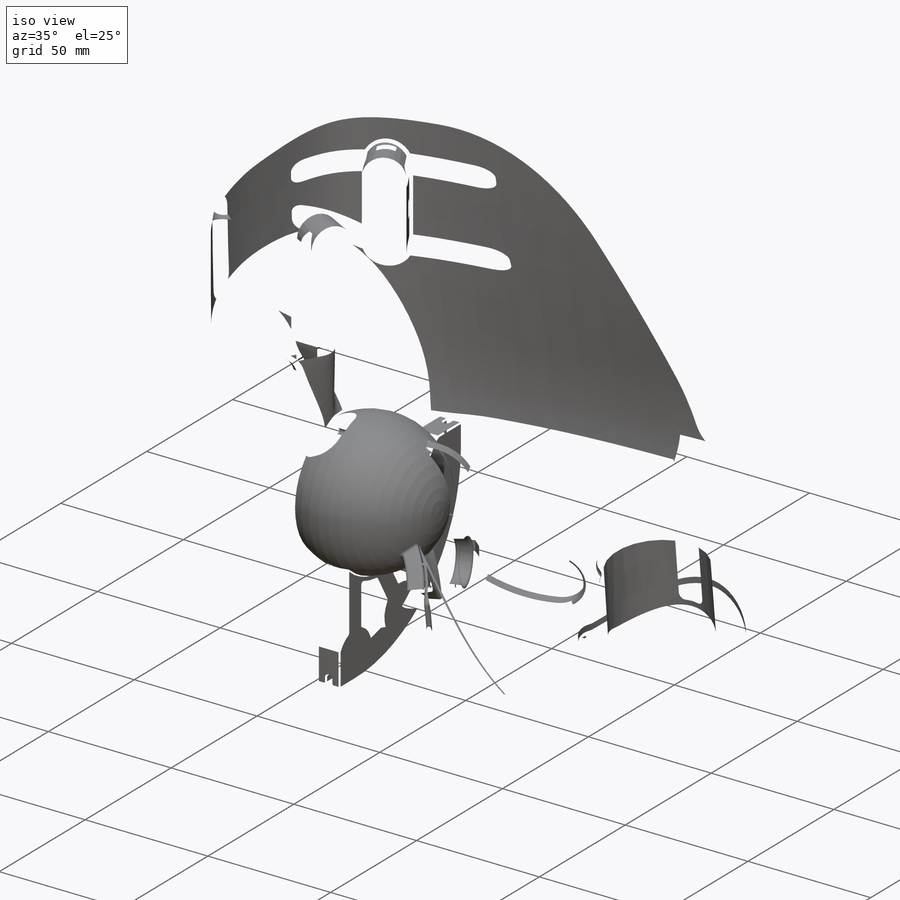
[diagram: iso view]
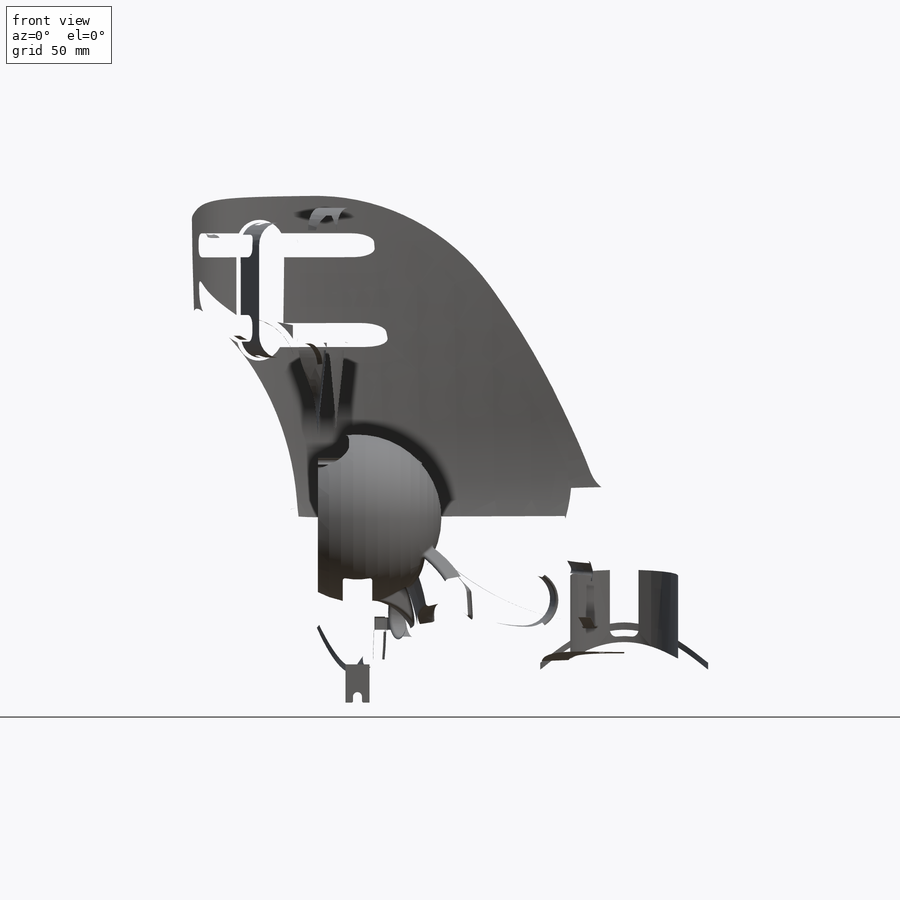
[diagram: front view]
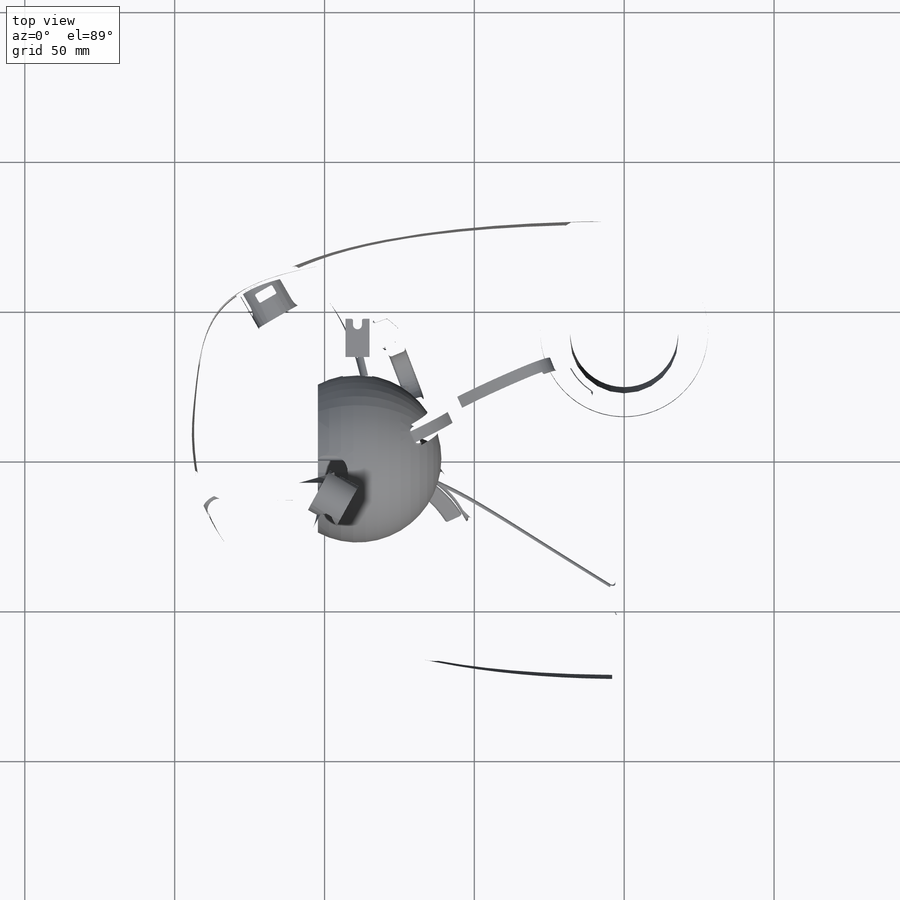
[diagram: top view]
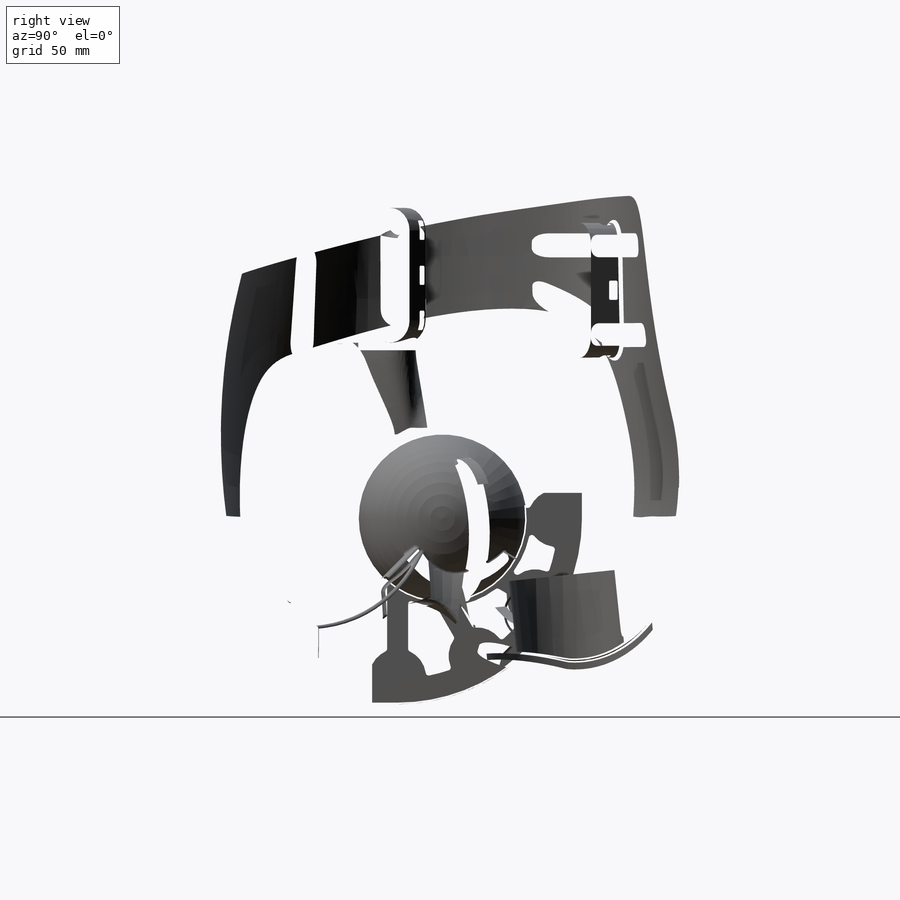
[diagram: right view]
SOLIDWORKS PART (.sldprt)
format: sldprt  version: not decoded by parser v0  size: 22,537,728 bytes
history: native  units: mm
features: sketch x119, plane x27, cut_extrude x14, extrude x14, hole x8, revolve x7, cut_revolve x6, pattern_circular x4, thread x3, surface_op x3, mirror x3, fillet x2, material x1 (+18 scaffold rows collapsed; 10 parser-record rows omitted)
feature tree (239):
  scaffold x18  (default folders/planes/origin — collapsed)
  material  "Material <nicht festgelegt>"
  plane  "Vorne"
  plane  "Oben"
  plane  "Rechts"
  sketch  "Skizze4"  dims[c1.D3=~163.785268mm c1.D2=~51.648182mm c2.D3=~211.701734mm c2.D4=~228.409906mm c2.D7=~87.232181mm c3.D3=375.0mm c3.D5=~146.556848mm c3.D6=5000.0mm c3.D7=300.0mm c3.D12=200.0mm c3.D13=35.0mm c3.D14=480.0mm c3.D16=~225.559991mm c3.D17=~137.502733mm c3.D18=160.0mm c3.D19=90.0mm c3.D1=~28.211065mm c3.D2=~66.263957mm c4.D1=80.0mm c4.D5=~65.463628mm c4.D6=~16.895229mm c4.D8=~53.710382mm c5.D1=85.0mm c5.D2=14.0mm c5.D4=80.0mm c5.D5=28.0mm c5.D7=~82.24904mm c5.D8=80.0mm c5.D9=55.0mm c5.D10=47.5mm c5.D11=50.0mm c5.D15=85.0mm c5.D16=120.0mm c5.D14=85.0mm c6.D15=110.0mm c6.D16=3.0deg c6.D17=15.0deg c6.D20=~285.822971mm c6.D21=~79.266788mm c6.D22=~73.257786mm]
  plane  "Ebene116"
  sketch  "Skizze5"  dims[c1.D1=~332.447459mm c1.D2=~299.702419mm c1.D5=~380.558368mm c1.D6=300.0mm c1.D7=300.0mm c2.D5=400.0mm c2.D6=400.0mm c2.D7=305.0mm c2.D8=280.0mm c3.D5=400.0mm c3.D8=250.0mm c3.D2=375.0mm c3.D3=~312.951834mm c3.D4=85.0mm c4.D2=280.0mm c4.D4=440.0mm c4.D5=475.0mm c4.D1=88.0deg c5.D2=88.0deg c5.D3=145.0mm c5.D4=145.0mm c5.D1=~598.728565mm c6.D1=95.0deg c6.D2=~598.728565mm c7.D2=95.0deg c7.D1=150.0mm c7.D3=85.0deg]
  sketch  "Skizze6"  dims[c1.D2=~243.594358mm c1.D3=245.0mm c1.D4=465.0mm c1.D5=360.0mm c1.D1=140.0mm c2.D2=85.0deg]
  sketch  "Skizze7"  dims[c1.D1=~180.714068mm c1.D2=~71.88216mm c1.D3=70.0mm c1.D4=180.0mm c2.D1=90.0deg c2.D2=75.0deg]
  sketch  "Skizze8"
  plane  "Ebene117"  Offset=80mm
  sketch  "3D-Skizze1"
  sketch  "Skizze9"  dims[D2=25.0mm D3=25.0mm D1=40.0mm]
  sketch  "Skizze10"
  plane  "Ebene118"  Offset=130mm
  sketch  "Skizze12"  dims[c1.D2=~28.489147mm c1.D3=20.0mm c1.D4=20.0mm c1.D5=100.0mm c1.D6=100.0mm c1.D1=30.0mm c2.D2=30.0mm]
  sketch  "Skizze13"
  plane  "Ebene123"
  sketch  "Skizze112"  dims[D1=45.0mm D2=65.0mm]
  sketch  "Skizze13<3>"
  sketch  "Skizze14"
  parser-record x10  (decoder bookkeeping rows leaked as tree rows — omitted from the tree; the rows remain in map.json)
  sketch  "Skizze17"  dims[c1.D1=~119.43538mm c2.D1=20.0deg c2.D2=120.0mm c2.D3=89.0mm]
  sketch  "Skizze18"
  plane  "Ebene119"
  sketch  "Skizze19"  dims[c1.D5=180.0mm c1.D6=250.0mm c2.D6=~314.148269mm c2.D7=315.0mm c2.D1=70.0mm c2.D2=65.0mm c2.D3=150.0mm c2.D4=55.0mm c3.D6=75.0deg]
  sketch  "Oberfläche-Trimmen4"
  sketch  "Skizze20"  dims[D1=350.0mm D2=200.0mm]
  sketch  "Oberfläche-Trimmen5"
  sketch  "Skizze23"  dims[D3=75.0mm D1=37.5mm D2=48.0mm]
  sketch  "Oberfläche-Trimmen6"
  sketch  "Skizze24"  dims[c1.D3=249.0mm c1.D4=100.0mm c1.D5=75.0mm c1.D2=10.0mm c1.D1=105.0mm c2.D2=15.0mm c2.D6=12.0mm c2.D7=9.6727mm c3.D7=75.0deg c3.D2=~165.379311mm c3.D6=9.5mm c4.D7=~8.135081mm c5.D7=20.0deg]
  sketch  "Oberfläche-Trimmen7"  dims[D1=6.0mm]
  sketch  "Skizze26"  dims[c1.D2=20.0mm c1.D1=~47.038277mm c2.D2=40.0mm c2.D4=28.0mm c2.D1=89.0mm c2.D3=8.0mm c2.D5=~16.072861mm c3.D5=45.0deg c3.D6=8.0mm c3.D7=~21.640974mm c4.D7=15.0deg]
  sketch  "Skizze28"  dims[c1.D1=17.0mm c1.D2=36.0mm c1.D3=~14.817554mm c2.D3=15.0deg c2.D2=15.0mm c2.D4=30.0mm]
  revolve  "Rotation2"  Angle=360deg
  hole  "M2.5 Gewindebohrung1"  Diameter=2.05mm Depth=12mm
  sketch  "Skizze62"  dims[D1=19.0mm]
  sketch  "Skizze61"  dims[hole-wizard template sketch: 46 standard entries collapsed; hole parameters kept: c15.Bohrerdurchmesser=2.05mm c15.Bohrungstiefe=12.0mm c15.D3=~14.816244mm c15.Spitzenwinkel=118.0deg]
  thread  "Bohrungsgewinde4"  Diameter=10mm  [1 undecoded]
  pattern_circular  "Kreismuster1"  Count=8 Angle=360deg
  sketch  "Skizze57"  dims[D1=3.0mm D2=3.0mm D3=90.0mm D4=90.0mm]
  sketch  "Oberfläche-Trimmen28"  dims[c1.D1=2.0mm c1.D2=3.0deg c2.D1=2.0mm c2.D2=3.0deg]
  fillet  "Verrundung24"  Radius=2mm
  sketch  "Skizze72"  dims[c1.D11=12.5mm c1.D1=~62.327521mm c2.D1=6.0deg c2.D2=37.146mm c2.D3=8.785mm c2.D4=3.0mm c2.D5=10.0mm c2.D6=40.0mm c2.D7=3.0mm c2.D8=~7.947211mm c3.D8=5.0deg c3.D9=40.0mm c3.D5=18.0mm c3.D6=~6.270644mm c4.D6=5.0deg c4.D10=40.0mm c4.D12=18.0mm c4.D13=25.0mm c4.D14=30.0mm c4.D15=~28.435337mm c5.D15=60.0deg c5.D16=~20.676444mm c6.D16=60.0deg]
  hole  "Rotation3"  [1 undecoded]
  sketch  "Skizze73"  dims[D1=45.0mm]
  hole  "Rotation4"  Diameter=2mm
  sketch  "Skizze75"  dims[c1.D3=15.5mm c1.D1=30.0mm c1.D2=30.0mm c2.D2=22.5deg]
  cut_extrude  "Schnitt-Linear austragen1"  Depth=8mm
  thread  "Achse2"  [2 undecoded]
  pattern_circular  "Kreismuster2"  Count=8 Angle=360deg
  sketch  "Skizze78"  dims[c1.D1=~9.826294mm c2.D1=22.5deg c2.D2=30.0mm c3.D1=2.0mm]
  sketch  "Skizze79"  dims[D3=25.0mm D4=40.0mm D1=80.0mm D2=30.0mm D5=~19.210196mm]
  surface_op  "Oberfläche-Linear austragen1"
  sketch  "Skizze80"  dims[c1.D1=~211.950862mm c1.D2=8.0mm c1.D3=75.0mm c1.D5=12.0mm c1.D7=35.0mm c2.D1=21.0mm c2.D4=15.0mm c2.D6=33.0mm]
  sketch  "Oberfläche-Trimmen31"
  sketch  "Skizze81"  dims[D2=40.0mm D1=25.0mm]
  sketch  "Skizze83"  dims[D1=60.0mm]
  sketch  "Skizze84"  dims[D1=28.0mm]
  sketch  "Skizze96"  dims[D3=20.0mm D4=15.0mm D9=9.0mm D10=9.0mm D11=40.0mm D1=40.0mm D2=20.0mm D5=22.0mm D6=50.0mm D7=33.0mm D8=27.0mm]
  sketch  "Oberfläche-Trimmen34"
  sketch  "Skizze85"  dims[D1=85.0mm D2=12.8mm]
  sketch  "Skizze83<2>"
  plane  "Ebene121"
  sketch  "Skizze86"  dims[c1.D3=~151.139817mm c1.D6=50.0mm c1.D1=85.0mm c1.D2=~16.638206mm c2.D2=8.0deg c2.D3=~86.267534mm c3.D3=20.0deg c3.D4=~46.214892mm c4.D4=15.0deg c4.D5=80.0mm]
  sketch  "Skizze87"  dims[D1=80.0mm D2=80.0mm]
  sketch  "Skizze88"  dims[c1.D1=55.0mm c2.D1=20.0mm]
  sketch  "Skizze90"  dims[c1.D2=36.0mm c1.D4=48.0mm c1.D1=~17.264031mm c2.D1=45.0deg c2.D3=~16.359863mm c3.D3=30.0deg]
  sketch  "Oberfläche-Trimmen32"
  sketch  "Skizze91"
  sketch  "Skizze93"
  sketch  "Skizze94"
  sketch  "Skizze83<3>"
  sketch  "Skizze95"  dims[c1.D2=60.0mm c1.D1=36.5mm c1.D3=~17.907024mm c2.D3=37.5deg]
  sketch  "Oberfläche-Trimmen33"
  sketch  "Skizze97"  dims[D2=17.5mm D1=27.5mm]
  sketch  "Oberfläche-Trimmen35"
  sketch  "Skizze98"  dims[c1.D2=42.0mm c1.D1=24.0mm c1.D3=~11.289997mm c2.D3=30.0deg]
  sketch  "Oberfläche-Trimmen36"  dims[c1.D1=3.0mm c2.D1=2.0mm c3.D1=2.0mm]
  sketch  "Skizze99"  dims[D1=180.0deg]
  sketch  "Oberfläche-Trimmen37"
  sketch  "Oberfläche-Trimmen43"
  sketch  "Oberfläche-Trimmen39"
  sketch  "Oberfläche-Trimmen40"
  sketch  "Oberfläche-Trimmen41"
  sketch  "Oberfläche-Trimmen42"
  sketch  "Skizze105"  dims[D1=38.0mm D2=64.0mm D3=47.0mm]
  plane  "Ebene122"
  sketch  "Skizze106"  dims[D1=10.0mm]
  surface_op  "Oberfläche-Rotation3"
  sketch  "Oberfläche-Trimmen44"  dims[D1=1.0mm]
  sketch  "Oberfläche-Trimmen46"
  sketch  "Skizze107"  dims[c1.D1=8.0mm c1.D3=50.0mm c1.D2=30.0mm c1.D4=8.0mm c2.D4=15.0deg c2.D5=77.5mm]
  sketch  "Oberfläche-Trimmen47"
  sketch  "Skizze108"  dims[D1=15.0mm D2=28.0mm D3=32.0mm]
  sketch  "Oberfläche-Trimmen48"
  revolve  "Wanddicke auftragen8"  [1 undecoded]
  revolve  "Wanddicke auftragen9"  [1 undecoded]
  revolve  "Wanddicke auftragen10"  [1 undecoded]
  revolve  "Wanddicke auftragen11"  [1 undecoded]
  revolve  "Wanddicke auftragen12"  [1 undecoded]
  revolve  "Wanddicke auftragen15"  [1 undecoded]
  sketch  "Skizze101"  dims[c1.D3=2.0mm c1.D1=26.5mm c1.D2=3.0mm c2.D3=6.0mm]
  hole  "Rotation5"  [1 undecoded]
  sketch  "Skizze103"  dims[D1=85.0mm D2=90.0mm]
  cut_extrude  "Schnitt-Linear austragen2"  [1 undecoded]
  sketch  "Skizze104"  dims[D1=3.0mm D2=20.0mm]
  cut_revolve  "Schnitt-Rotation1"  Angle=180deg
  sketch  "Skizze109"  dims[c1.D1=2.55mm c1.D2=~3.001681mm c2.D2=90.0deg c2.D3=26.0mm c2.D4=2.0mm c2.D5=25.0mm c2.D6=~3.910585mm c3.D6=90.0deg c3.D7=6.0mm]
  hole  "Rotation6"  [1 undecoded]
  cut_revolve  "Schnitt-Rotation2"  [1 undecoded]
  sketch  "Skizze109<4>"  dims[D1=180.0deg]
  sketch  "Skizze111"  dims[c1.D1=70.0mm c1.D2=2.55mm c1.D3=~4.051625mm c2.D3=90.0deg c2.D4=18.0mm c2.D5=2.5mm c2.D6=5.0mm c2.D7=~6.046752mm c3.D7=90.0deg c3.D8=15.5mm c3.D9=0.5mm]
  hole  "Rotation7"  [1 undecoded]
  cut_revolve  "Schnitt-Rotation3"  [1 undecoded]
  sketch  "Skizze111<3>"  dims[D1=360.0deg]
  sketch  "Skizze144"  dims[c1.D1=~2.131155mm c2.D1=120.0deg c2.D2=4.2mm c2.D3=4.2mm]
  cut_extrude  "Schnitt-Linear austragen6"  Depth=4mm
  sketch  "Skizze145"
  cut_extrude  "Schnitt-Linear austragen7"  [1 undecoded]
  sketch  "Skizze146"  dims[c1.D1=~17.664376mm c2.D1=20.0deg c2.D2=~17.664376mm c3.D2=60.0deg c3.D3=~3.856554mm c4.D3=60.0deg c4.D4=4.2mm c4.D5=4.2mm c4.D6=8.0mm]
  cut_extrude  "Schnitt-Linear austragen8"  Depth=4.4mm
  sketch  "Skizze113"  dims[D1=1.0mm]
  extrude  "Aufsatz-Linear austragen1"  Depth=45.8mm
  fillet  "Oberflächenschnitt7"  Radius=0.9mm
  sketch  "Skizze114"  dims[c1.D1=34.0mm c1.D2=28.0mm c1.D3=20.0mm c1.D4=30.0mm c2.D1=1.0mm]
  surface_op  "Oberfläche-Rotation4"
  sketch  "Oberfläche-Trimmen49"
  sketch  "Skizze115"  dims[D1=22.0mm D2=7.5mm D3=48.5mm D4=21.0mm]
  plane  "Ebene125"
  sketch  "Skizze116"  dims[c1.D1=48.0mm c1.D2=2.25mm c1.D3=~1.193815mm c2.D3=45.0deg c2.D4=1.05mm c2.D5=1.0mm c2.D6=3.8mm c2.D7=1.6mm c3.D7=45.0deg c4.D7=0.8mm c4.D8=~4.498909mm c5.D8=45.0deg c6.D8=~4.498909mm c7.D8=60.0deg c8.D8=12.0mm c8.D9=0.8mm c9.D9=60.0deg]
  cut_revolve  "Schnitt-Rotation4"  Angle=360deg
  plane  "Ebene126"
  sketch  "Skizze117"  dims[c1.D1=52.0mm c1.D2=2.25mm c1.D3=1.05mm c1.D4=0.8mm c1.D5=~2.375034mm c2.D5=45.0deg c2.D6=~9.08929mm c3.D6=60.0deg c3.D7=2.5mm c3.D8=5.4mm c3.D9=12.0mm]
  cut_revolve  "Schnitt-Rotation5"  Angle=360deg
  sketch  "Skizze118"
  cut_extrude  "Schnitt-Linear austragen3"  [1 undecoded]
  plane  "Ebene127"  Offset=89mm
  sketch  "Skizze119"  dims[D1=45.0mm D2=35.0mm D3=46.1mm D4=30.0mm D5=45.0mm]
  plane  "Ebene128"
  sketch  "Skizze120"  dims[c1.D1=~195.185321mm c2.D1=29.0deg c2.D2=22.4mm c2.D3=16.15mm]
  plane  "Ebene129"
  sketch  "Skizze121"  dims[c1.D1=6.3mm c1.D2=7.5mm c1.D3=8.293mm c2.D2=15.0mm c2.D3=7.5mm c2.D4=15.0mm c2.D5=15.0mm]
  extrude  "Aufsatz-Linear austragen2"  Depth=12mm
  extrude  "Aufsatz-Linear austragen3"  [1 undecoded]
  sketch  "Skizze121<3>"  dims[D1=2.0mm]
  plane  "Ebene140"  Offset=1mm
  sketch  "Skizze135"  dims[c1.D2=85.0mm c1.D4=42.0mm c1.D1=~38.634559mm c2.D1=55.0deg c2.D2=~40.529418mm c3.D2=100.0deg c3.D3=30.5mm c3.D1=15.0mm c3.D5=~13.936056mm c4.D5=40.0deg]
  extrude  "Aufsatz-Linear austragen10"  Depth=6mm
  plane  "Ebene137"
  sketch  "Skizze136"  dims[D1=~144.160787mm D2=~100.560436mm D3=68.0mm D4=27.0mm D5=5.0mm D6=6.0mm]
  extrude  "Aufsatz-Linear austragen11"  Depth=4mm
  plane  "Ebene138"
  sketch  "Skizze137"  dims[D1=1.0mm D2=10.0mm D3=10.0mm]
  extrude  "Aufsatz-Linear austragen12"  Depth=10mm
  plane  "Ebene139"
  sketch  "Skizze138"  dims[c1.D1=6.0mm c1.D2=10.0mm c1.D3=15.0mm c1.D4=86.0mm c1.D5=10.0mm c1.D6=5.0mm c1.D7=10.0mm c2.D7=90.0deg c2.D1=6.0mm c2.D2=4.0mm c2.D3=5.0mm c2.D4=6.0mm c2.D5=3.0mm c2.D6=10.0mm c3.D6=90.0deg c3.D7=96.0mm]
  extrude  "Aufsatz-Linear austragen13"  [1 undecoded]
  sketch  "Skizze138<3>"  dims[c1.D1=10.0mm c2.D1=17.0mm c3.D1=2.0mm c4.D1=4.0mm c5.D1=4.0mm c6.D1=1.0mm c7.D1=1.0mm]
  plane  "Ebene4"  Offset=10mm
  sketch  "Skizze156"  dims[c1.D1=~10.226307mm c2.D1=60.0deg c2.D2=~4.899351mm c3.D2=~222.490635deg c4.D2=~9.100949mm c5.D2=60.0deg c5.D3=2.95mm c5.D4=2.95mm]
  cut_extrude  "Schnitt-Linear austragen10"  Depth=2.8mm
  sketch  "Skizze158"  dims[D1=3.5mm]
  cut_extrude  "Schnitt-Linear austragen12"  [1 undecoded]
  plane  "Ebene130"
  sketch  "Skizze122"  dims[c1.D1=~20.95179mm c2.D1=30.0deg c2.D2=22.4mm c2.D3=13.85mm]
  plane  "Ebene131"
  sketch  "Skizze123"  dims[D1=6.3mm D2=15.0mm D3=15.0mm D4=15.0mm D5=7.5mm]
  extrude  "Aufsatz-Linear austragen4"  Depth=15.5mm
  extrude  "Aufsatz-Linear austragen5"  [1 undecoded]
  sketch  "Skizze123<3>"  dims[D1=2.0mm]
  plane  "Ebene133"  Offset=1mm
  sketch  "Skizze126"  dims[c1.D4=15.0mm c1.D1=3.0mm c1.D2=3.0mm c1.D3=44.0mm c1.D5=~4.698662mm c2.D5=45.0deg c3.D5=~17.567141mm c4.D5=60.0deg c4.D6=33.0mm c4.D7=3.0mm]
  extrude  "Aufsatz-Linear austragen7"  [1 undecoded]
  sketch  "Skizze127"  dims[D1=5.0mm]
  cut_extrude  "Schnitt-Linear austragen4"  Depth=5.5mm
  sketch  "Skizze128"  dims[c1.D1=~4.986206mm c2.D1=17.5deg]
  cut_extrude  "Schnitt-Linear austragen5"  [1 undecoded]
  sketch  "Skizze139"  dims[D1=5.0mm]
  extrude  "Aufsatz-Linear austragen14"  [1 undecoded]
  plane  "Ebene141"
  sketch  "Skizze143"
  extrude  "Aufsatz-Linear austragen15"  Depth=2mm
  plane  "Ebene5"  Offset=10mm
  sketch  "Skizze157"  dims[c1.D1=~9.731133mm c2.D1=60.0deg c2.D2=~4.559883mm c3.D2=60.0deg c3.D3=2.95mm c3.D4=2.95mm c3.D5=2.95mm c3.D6=2.95mm]
  cut_extrude  "Schnitt-Linear austragen11"  Depth=2.8mm
  sketch  "Skizze159"  dims[D1=3.5mm]
  cut_extrude  "Schnitt-Linear austragen13"  [1 undecoded]
  sketch  "Skizze147"  dims[c1.D3=12.0mm c1.D1=45.0mm c1.D2=60.0mm c1.D4=1.0mm c1.D5=53.0mm c2.D5=30.0deg c2.D6=53.0mm c3.D6=30.0deg]
  sketch  "Skizze148"  dims[c1.D3=~0.941561mm c1.D9=~0.753336mm c2.D3=0.5mm c2.D9=~0.751557mm c2.D1=25.0mm c2.D2=5.0mm c3.D3=~1.657615mm c4.D3=5.0deg c4.D4=3.3mm c4.D5=0.3mm c4.D6=0.3mm c4.D7=0.3mm c4.D8=0.3mm c5.D3=7.4mm c5.D8=~0.266085mm c6.D8=30.0deg c6.D9=0.3mm]
  sketch  "Skizze149"  dims[c1.D1=9.0mm c1.D2=3.0mm c1.D3=9.0mm c1.D4=6.0mm c1.D5=9.5mm c1.D6=25.0mm c2.D4=6.0mm]
  hole  "Rotation8"  [1 undecoded]
  sketch  "Skizze151"
  extrude  "Aufsatz-Linear austragen16"  Depth=9mm
  plane  "Ebene2"
  plane  "Ebene3"
  mirror  "Spiegeln2"
  sketch  "Skizze153"  dims[D1=5.5mm D2=~1.669845mm]
  cut_extrude  "Schnitt-Linear austragen9"  Depth=1mm
  cut_revolve  "Schnitt-Rotation7"  Angle=360deg
  hole  "Rotation9"  [1 undecoded]
  sketch  "Skizze148<6>"  dims[D1=360.0deg]
  thread  "Achse3"  [2 undecoded]
  pattern_circular  "Kreismuster3"  Count=4 Angle=90deg
  pattern_circular  "Kreismuster5"  Count=4 Angle=90deg
  sketch  "Skizze160"  dims[c1.D1=17.0mm c1.D2=10.0mm c1.D3=52.0mm c1.D8=30.0mm c2.D2=~6.378421mm c2.D3=4.0mm c2.D4=4.0mm c2.D5=4.0mm c2.D6=4.0mm c2.D7=4.0mm c2.D9=4.0mm c2.D10=4.0mm]
  extrude  "Aufsatz-Linear austragen17"  [1 undecoded]
  cut_extrude  "Schnitt-Linear austragen14"  [1 undecoded]
  sketch  "Skizze160<3>"  dims[D1=0.5mm]
  mirror  "Spiegeln1"
  mirror  "Spiegeln3"
decode coverage: 114 of 183 modeling features carry decoded parameters
note: ~ marks probable driven/reference dimensions
note: 32 parameter values undecoded
summary: no parameter record found for 29 features
note: suppression state not decoded; provenance and decode notes live in map.json
